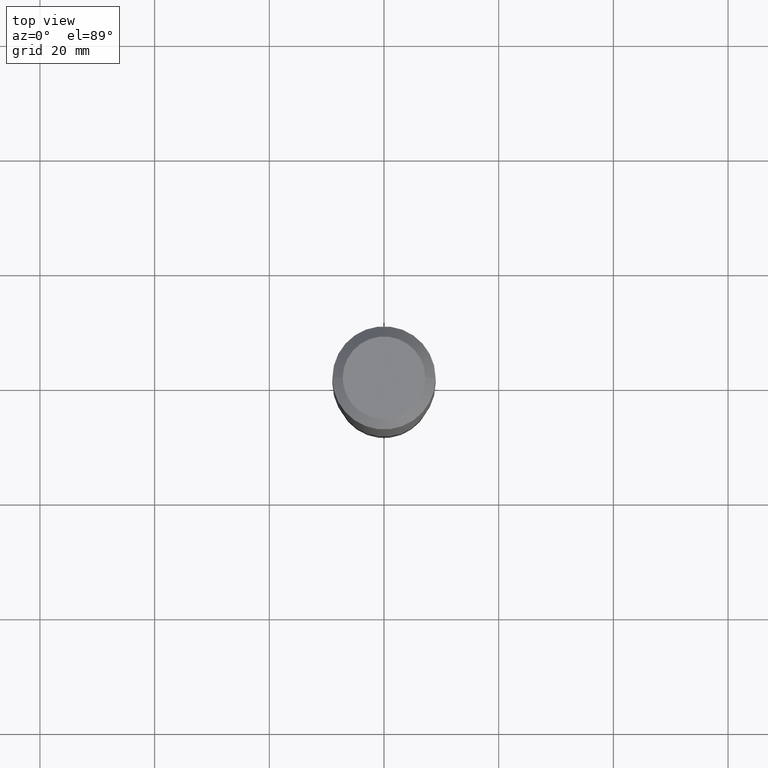
[diagram: clean part render]
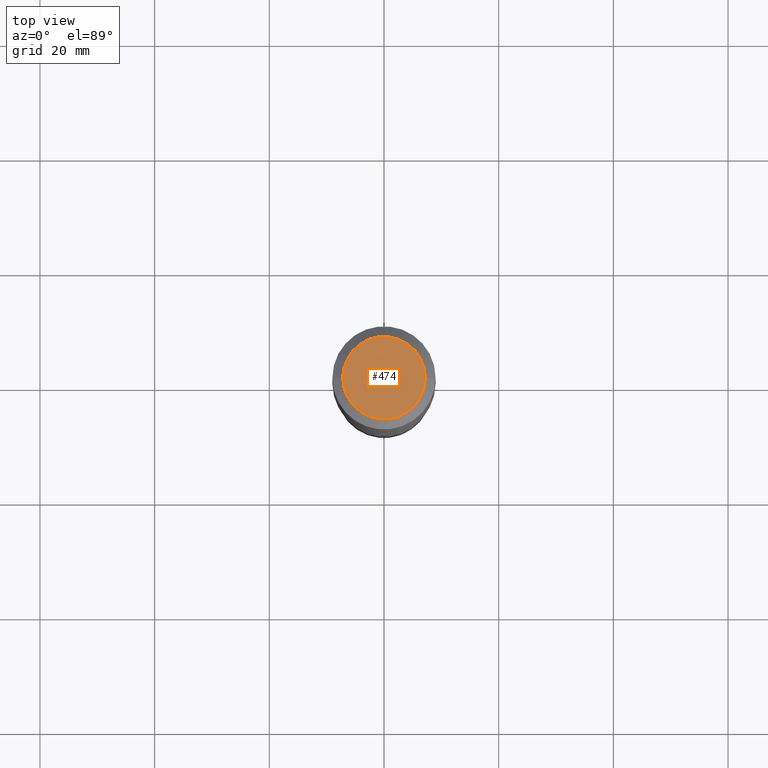
[diagram: same view with one face highlighted and labeled with its STEP entity id]
A machine part, top view. The second image highlights one B-rep face of the part: STEP entity #474.
In plain terms, the highlighted planar face has unit normal (0, -0, -1).
Its self-contained STEP definition (entity closure, byte-faithful):
#12 = EDGE_CURVE ( 'NONE', #422, #443, #468, .T. ) ;
#16 = DIRECTION ( 'NONE',  ( -2.445468806185136597E-29, 3.491481338843145583E-15, 1.000000000000000000 ) ) ;
#57 = DIRECTION ( 'NONE',  ( -1.000000000000000000, 6.982962677686265922E-15, -4.876176775795935793E-29 ) ) ;
#61 = CARTESIAN_POINT ( 'NONE',  ( 0.2834800000000000098, -2.311636360201216027E-15, 3.860086710927458874E-18 ) ) ;
#68 = DIRECTION ( 'NONE',  ( 1.000000000000000000, -6.982962677686266711E-15, 4.876249319814053138E-29 ) ) ;
#118 = AXIS2_PLACEMENT_3D ( 'NONE', #127, #267, #57 ) ;
#127 = CARTESIAN_POINT ( 'NONE',  ( -4.719860820353095981E-47, 6.738710358733626979E-33, 1.930043355456227555E-18 ) ) ;
#151 = AXIS2_PLACEMENT_3D ( 'NONE', #417, #253, #414 ) ;
#162 = EDGE_LOOP ( 'NONE', ( #266, #190 ) ) ;
#180 = EDGE_CURVE ( 'NONE', #443, #422, #188, .T. ) ;
#188 = CIRCLE ( 'NONE', #151, 0.2834800000000000098 ) ;
#190 = ORIENTED_EDGE ( 'NONE', *, *, #180, .T. ) ;
#225 = PLANE ( 'NONE',  #118 ) ;
#253 = DIRECTION ( 'NONE',  ( -2.445468806185136597E-29, 3.491481338843145583E-15, 1.000000000000000000 ) ) ;
#266 = ORIENTED_EDGE ( 'NONE', *, *, #12, .T. ) ;
#267 = DIRECTION ( 'NONE',  ( 2.438088387897960049E-29, -3.491481338843145188E-15, -1.000000000000000000 ) ) ;
#413 = CARTESIAN_POINT ( 'NONE',  ( -0.2834800000000000098, 2.103250901112408108E-15, 3.860086710898179346E-18 ) ) ;
#414 = DIRECTION ( 'NONE',  ( 1.000000000000000000, -6.982962677686266711E-15, 4.876249319814053138E-29 ) ) ;
#417 = CARTESIAN_POINT ( 'NONE',  ( -9.439721640706191963E-47, 1.347742071746725396E-32, 3.860086710912455110E-18 ) ) ;
#422 = VERTEX_POINT ( 'NONE', #413 ) ;
#443 = VERTEX_POINT ( 'NONE', #61 ) ;
#448 = FACE_OUTER_BOUND ( 'NONE', #162, .T. ) ;
#456 = CARTESIAN_POINT ( 'NONE',  ( -9.439721640706191963E-47, 1.347742071746725396E-32, 3.860086710912455110E-18 ) ) ;
#468 = CIRCLE ( 'NONE', #496, 0.2834800000000000098 ) ;
#474 = ADVANCED_FACE ( 'NONE', ( #448 ), #225, .F. ) ;
#496 = AXIS2_PLACEMENT_3D ( 'NONE', #456, #16, #68 ) ;